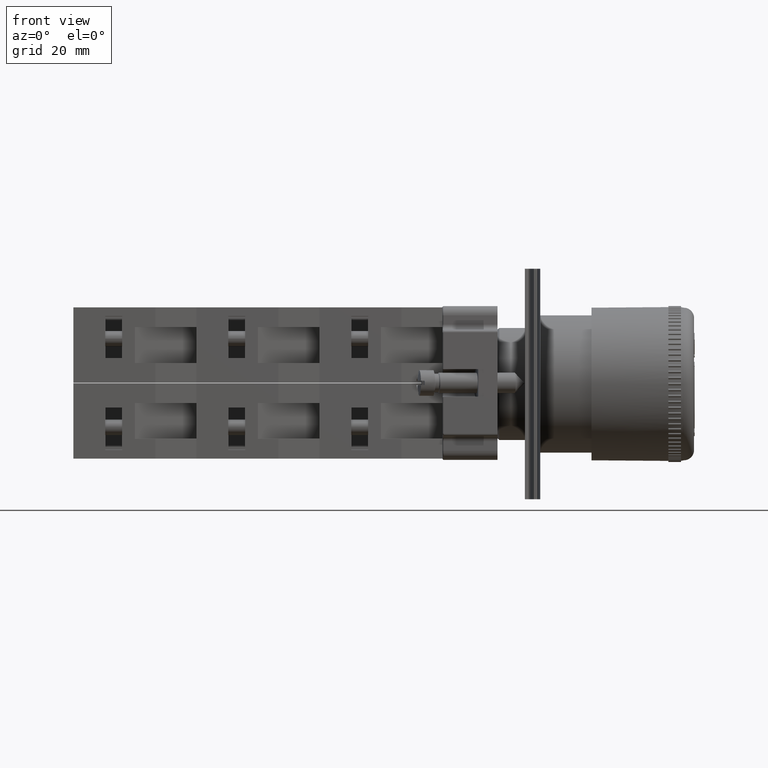
[diagram: clean part render]
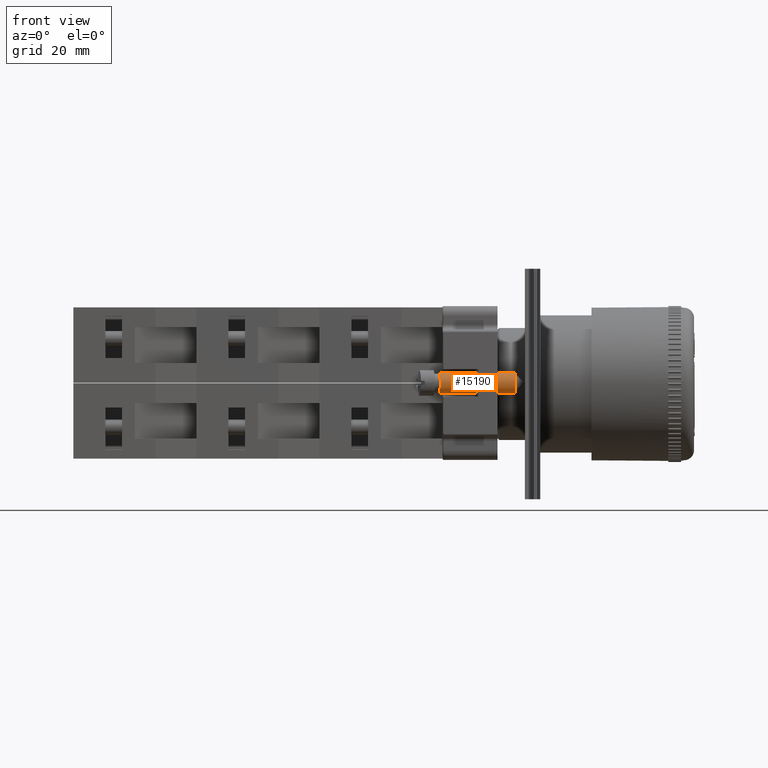
[diagram: same view with one face highlighted and labeled with its STEP entity id]
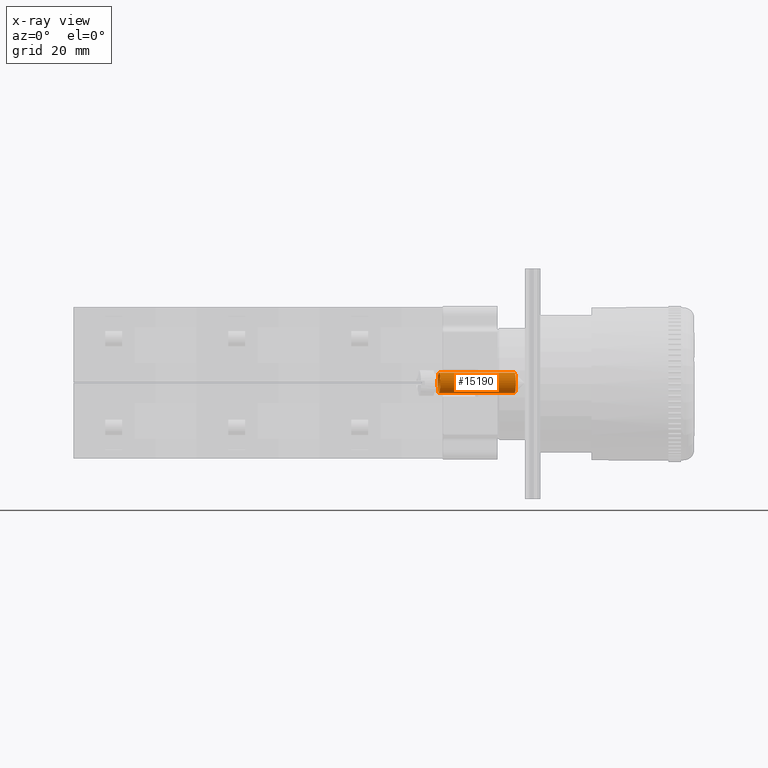
[diagram: x-ray of the same camera — body ghosted, the highlighted face saturated]
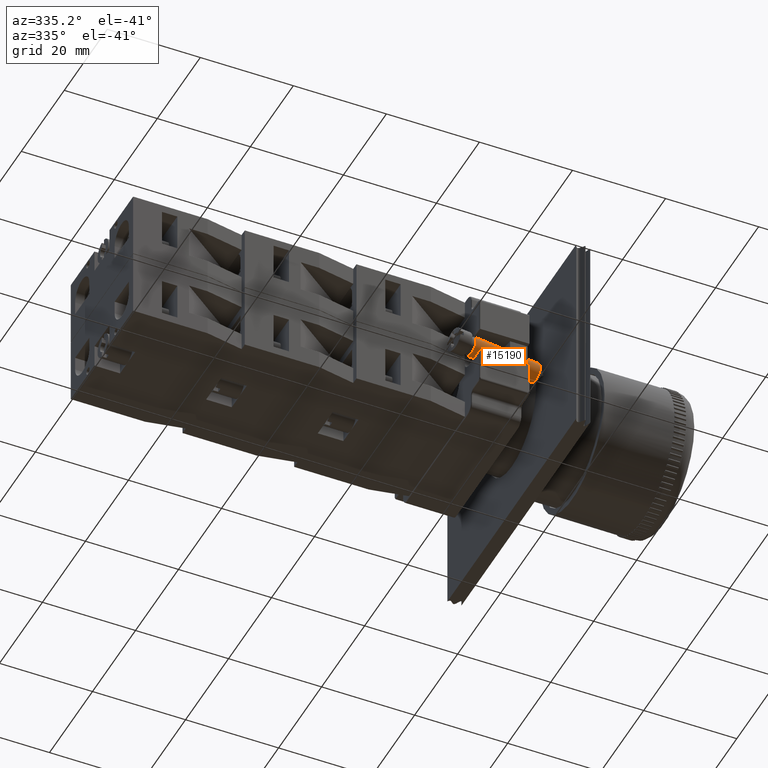
[diagram: same view with one face highlighted and labeled with its STEP entity id]
A machine part, front view. The second image highlights one B-rep face of the part: STEP entity #15190.
The next image is the same camera in x-ray: the body ghosted, the highlighted face saturated — about 0% of this face is hidden behind the body in this view.
A second angle (auxiliary view) of the same face is appended — the face is thin or edge-on in the first view.
In plain terms, the highlighted cylindrical surface (bore or boss wall) has radius 2 mm, axis along (0.9914, 0.1305, 0).
Its self-contained STEP definition (entity closure, byte-faithful):
#15159=CARTESIAN_POINT('',(-1.999999999999998,0.0,-1.119999999999999));
#15160=VERTEX_POINT('',#15159);
#15161=CARTESIAN_POINT('',(0.0,0.0,-1.119999999999999));
#15162=DIRECTION('',(0.0,0.0,-1.0));
#15163=DIRECTION('',(-1.0,0.0,0.0));
#15164=AXIS2_PLACEMENT_3D('',#15161,#15162,#15163);
#15165=CIRCLE('',#15164,1.999999999999998);
#15166=EDGE_CURVE('',#15160,#15160,#15165,.T.);
#15171=CARTESIAN_POINT('',(0.0,0.0,-8.559999999999999));
#15172=DIRECTION('',(0.0,0.0,-1.0));
#15173=DIRECTION('',(-1.0,0.0,0.0));
#15174=AXIS2_PLACEMENT_3D('',#15171,#15172,#15173);
#15175=CYLINDRICAL_SURFACE('',#15174,1.999999999999999);
#15176=CARTESIAN_POINT('',(-2.000000000000000,0.0,-15.999999999999998));
#15177=VERTEX_POINT('',#15176);
#15178=CARTESIAN_POINT('',(0.0,0.0,-15.999999999999998));
#15179=DIRECTION('',(0.0,0.0,-1.0));
#15180=DIRECTION('',(-1.0,0.0,0.0));
#15181=AXIS2_PLACEMENT_3D('',#15178,#15179,#15180);
#15182=CIRCLE('',#15181,2.000000000000000);
#15183=EDGE_CURVE('',#15177,#15177,#15182,.T.);
#15184=ORIENTED_EDGE('',*,*,#15183,.F.);
#15185=EDGE_LOOP('',(#15184));
#15186=FACE_OUTER_BOUND('',#15185,.T.);
#15187=ORIENTED_EDGE('',*,*,#15166,.T.);
#15188=EDGE_LOOP('',(#15187));
#15189=FACE_BOUND('',#15188,.T.);
#15190=ADVANCED_FACE('',(#15186,#15189),#15175,.T.);